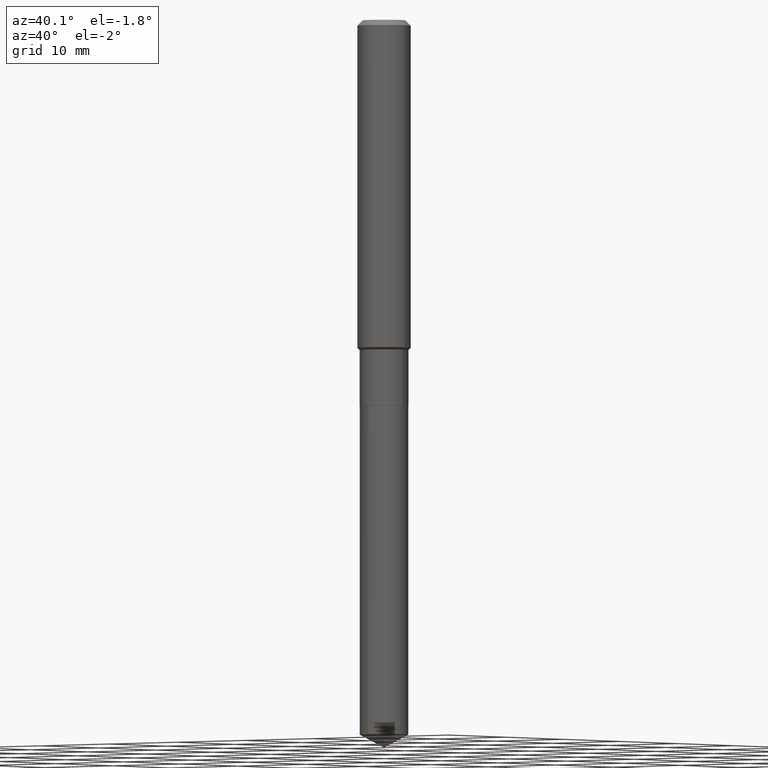
[diagram: clean part render]
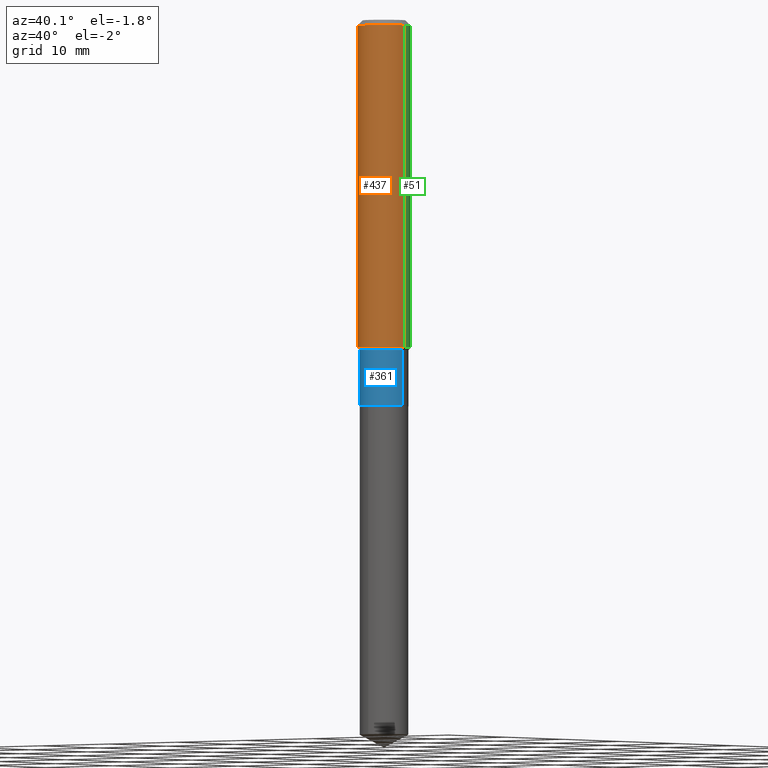
[diagram: same view with three faces highlighted in distinct colors, each labeled with its STEP entity id]
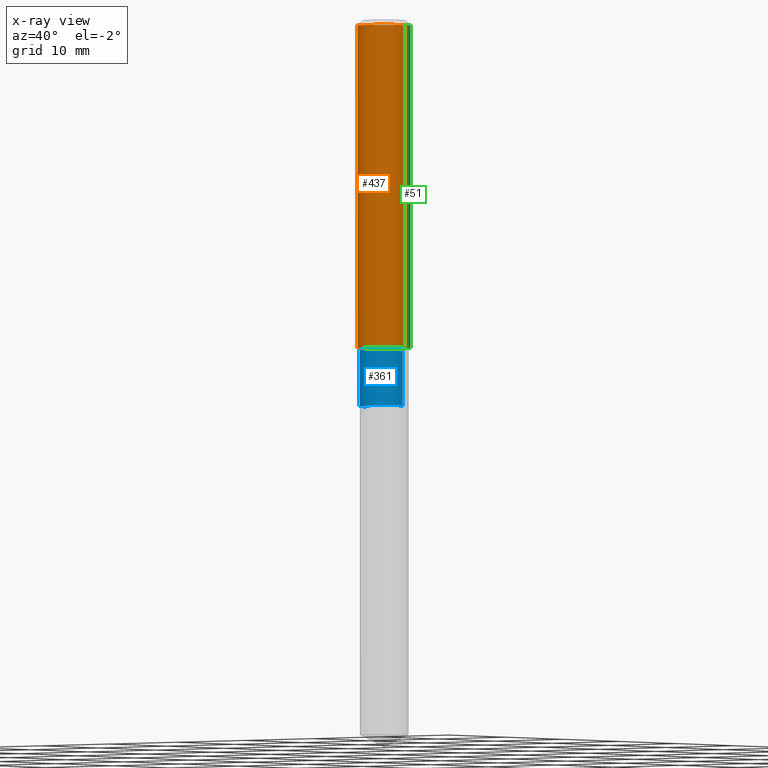
[diagram: x-ray of the same camera — body ghosted, the three highlighted faces saturated]
A machine part, auxiliary view with three faces highlighted in distinct colors.
The next image is the same camera in x-ray (body ghosted, the three faces saturated) — at least one of them is partly hidden behind the body in this view.
Their STEP definitions:

[orange] entity #437 — the highlighted cylindrical surface (edge-blend (fillet) strip) has radius 2.9997 mm, axis along (-0, 0, 1).
#4 = AXIS2_PLACEMENT_3D ( 'NONE', #48, #129, #350 ) ;
#8 = LINE ( 'NONE', #85, #433 ) ;
#16 = DIRECTION ( 'NONE',  ( -2.445468806185136597E-29, 3.491481338843145583E-15, 1.000000000000000000 ) ) ;
#18 = FACE_OUTER_BOUND ( 'NONE', #283, .T. ) ;
#28 = CARTESIAN_POINT ( 'NONE',  ( 0.1181000000000000799, -8.246878922347486570E-16, 5.758764772215004644E-30 ) ) ;
#48 = CARTESIAN_POINT ( 'NONE',  ( 3.554855730111023835E-29, -5.075391848209338091E-15, -1.453649999999999887 ) ) ;
#49 = ORIENTED_EDGE ( 'NONE', *, *, #268, .F. ) ;
#85 = CARTESIAN_POINT ( 'NONE',  ( -0.1181000000000000799, 8.391509709326788873E-16, -5.809262341591047988E-30 ) ) ;
#92 = VECTOR ( 'NONE', #484, 39.37007874015748143 ) ;
#126 = AXIS2_PLACEMENT_3D ( 'NONE', #411, #139, #447 ) ;
#129 = DIRECTION ( 'NONE',  ( -2.445468806185136597E-29, 3.491481338843145583E-15, 1.000000000000000000 ) ) ;
#139 = DIRECTION ( 'NONE',  ( -2.445468806185136597E-29, 3.491481338843145583E-15, 1.000000000000000000 ) ) ;
#154 = EDGE_CURVE ( 'NONE', #193, #281, #369, .T. ) ;
#161 = DIRECTION ( 'NONE',  ( 1.000000000000000000, -6.982962677686266711E-15, 0.000000000000000000 ) ) ;
#172 = CYLINDRICAL_SURFACE ( 'NONE', #126, 0.1181000000000000799 ) ;
#193 = VERTEX_POINT ( 'NONE', #355 ) ;
#200 = CARTESIAN_POINT ( 'NONE',  ( 5.776197320209327532E-31, -8.246878922347559293E-17, -0.02362000000000014088 ) ) ;
#221 = EDGE_CURVE ( 'NONE', #233, #434, #8, .T. ) ;
#232 = CARTESIAN_POINT ( 'NONE',  ( -0.1181000000000001632, -4.236240877276659105E-15, -1.453649999999999887 ) ) ;
#233 = VERTEX_POINT ( 'NONE', #232 ) ;
#236 = CIRCLE ( 'NONE', #259, 0.1180999999999999966 ) ;
#259 = AXIS2_PLACEMENT_3D ( 'NONE', #200, #16, #161 ) ;
#268 = EDGE_CURVE ( 'NONE', #434, #281, #236, .T. ) ;
#281 = VERTEX_POINT ( 'NONE', #425 ) ;
#283 = EDGE_LOOP ( 'NONE', ( #429, #390, #467, #49 ) ) ;
#292 = CARTESIAN_POINT ( 'NONE',  ( -0.1180999999999999966, -1.739779347783727196E-15, -0.02362000000000014088 ) ) ;
#303 = EDGE_CURVE ( 'NONE', #233, #193, #482, .T. ) ;
#312 = DIRECTION ( 'NONE',  ( -2.445468806185136877E-29, 3.491481338843145188E-15, 1.000000000000000000 ) ) ;
#350 = DIRECTION ( 'NONE',  ( 1.000000000000000000, -6.982962677686270655E-15, 0.000000000000000000 ) ) ;
#355 = CARTESIAN_POINT ( 'NONE',  ( 0.1181000000000001632, -5.900079740444087931E-15, -1.453649999999999887 ) ) ;
#369 = LINE ( 'NONE', #28, #92 ) ;
#390 = ORIENTED_EDGE ( 'NONE', *, *, #303, .T. ) ;
#411 = CARTESIAN_POINT ( 'NONE',  ( 0.000000000000000000, 0.000000000000000000, 0.000000000000000000 ) ) ;
#425 = CARTESIAN_POINT ( 'NONE',  ( 0.1180999999999999966, -9.071566814582237199E-16, -0.02362000000000014088 ) ) ;
#429 = ORIENTED_EDGE ( 'NONE', *, *, #221, .F. ) ;
#433 = VECTOR ( 'NONE', #312, 39.37007874015748143 ) ;
#434 = VERTEX_POINT ( 'NONE', #292 ) ;
#437 = ADVANCED_FACE ( 'NONE', ( #18 ), #172, .T. ) ;
#447 = DIRECTION ( 'NONE',  ( 1.000000000000000000, -6.982962677686266711E-15, 4.876176775795936353E-29 ) ) ;
#467 = ORIENTED_EDGE ( 'NONE', *, *, #154, .T. ) ;
#482 = CIRCLE ( 'NONE', #4, 0.1181000000000001632 ) ;
#484 = DIRECTION ( 'NONE',  ( -2.445468806185136877E-29, 3.491481338843145188E-15, 1.000000000000000000 ) ) ;

[blue] entity #361 — the highlighted cylindrical surface (edge-blend (fillet) strip) has radius 2.7495 mm, axis along (-0, 0, 1).
#1 = CARTESIAN_POINT ( 'NONE',  ( 3.578943597851947764E-29, -5.109782939396944472E-15, -1.463500000000000023 ) ) ;
#20 = CIRCLE ( 'NONE', #474, 0.1082499999999999712 ) ;
#22 = DIRECTION ( 'NONE',  ( -2.445468806185136597E-29, 3.491481338843145583E-15, 1.000000000000000000 ) ) ;
#26 = CARTESIAN_POINT ( 'NONE',  ( -0.1082499999999999851, 7.691625114603083455E-16, -5.324747235200934608E-30 ) ) ;
#27 = CYLINDRICAL_SURFACE ( 'NONE', #297, 0.1082499999999999851 ) ;
#44 = ORIENTED_EDGE ( 'NONE', *, *, #114, .F. ) ;
#45 = EDGE_CURVE ( 'NONE', #235, #201, #421, .T. ) ;
#64 = CARTESIAN_POINT ( 'NONE',  ( 0.1082499999999999851, -7.559057098595382610E-16, 5.278461359799099291E-30 ) ) ;
#67 = EDGE_CURVE ( 'NONE', #227, #201, #20, .T. ) ;
#99 = CARTESIAN_POINT ( 'NONE',  ( 4.186642596188954069E-29, -5.977416052099465667E-15, -1.712000000000000188 ) ) ;
#106 = DIRECTION ( 'NONE',  ( -2.445468806185136597E-29, 3.491481338843145583E-15, 1.000000000000000000 ) ) ;
#110 = DIRECTION ( 'NONE',  ( -2.445468806185136877E-29, 3.491481338843145188E-15, 1.000000000000000000 ) ) ;
#113 = CARTESIAN_POINT ( 'NONE',  ( -0.1082499999999999990, -4.774436984287896921E-15, -1.712000000000000188 ) ) ;
#114 = EDGE_CURVE ( 'NONE', #127, #227, #222, .T. ) ;
#127 = VERTEX_POINT ( 'NONE', #113 ) ;
#133 = FACE_OUTER_BOUND ( 'NONE', #460, .T. ) ;
#157 = CARTESIAN_POINT ( 'NONE',  ( -0.1082499999999999712, -4.774436984287896921E-15, -1.463500000000000023 ) ) ;
#194 = VECTOR ( 'NONE', #252, 39.37007874015748143 ) ;
#201 = VERTEX_POINT ( 'NONE', #346 ) ;
#214 = CIRCLE ( 'NONE', #289, 0.1082499999999999990 ) ;
#222 = LINE ( 'NONE', #26, #194 ) ;
#227 = VERTEX_POINT ( 'NONE', #157 ) ;
#235 = VERTEX_POINT ( 'NONE', #266 ) ;
#252 = DIRECTION ( 'NONE',  ( -2.445468806185136877E-29, 3.491481338843145188E-15, 1.000000000000000000 ) ) ;
#266 = CARTESIAN_POINT ( 'NONE',  ( 0.1082499999999999990, -6.733321761959004322E-15, -1.712000000000000188 ) ) ;
#288 = DIRECTION ( 'NONE',  ( 1.000000000000000000, -6.982962677686266711E-15, 4.876176775795935232E-29 ) ) ;
#289 = AXIS2_PLACEMENT_3D ( 'NONE', #99, #22, #333 ) ;
#297 = AXIS2_PLACEMENT_3D ( 'NONE', #398, #106, #288 ) ;
#333 = DIRECTION ( 'NONE',  ( 1.000000000000000000, -6.982962677686267499E-15, 0.000000000000000000 ) ) ;
#342 = DIRECTION ( 'NONE',  ( 1.000000000000000000, -6.982962677686269077E-15, 0.000000000000000000 ) ) ;
#346 = CARTESIAN_POINT ( 'NONE',  ( 0.1082499999999999712, -5.865688649256482338E-15, -1.463500000000000023 ) ) ;
#361 = ADVANCED_FACE ( 'NONE', ( #133 ), #27, .T. ) ;
#363 = ORIENTED_EDGE ( 'NONE', *, *, #67, .F. ) ;
#366 = ORIENTED_EDGE ( 'NONE', *, *, #465, .T. ) ;
#398 = CARTESIAN_POINT ( 'NONE',  ( 0.000000000000000000, 0.000000000000000000, 0.000000000000000000 ) ) ;
#418 = DIRECTION ( 'NONE',  ( -2.445468806185136597E-29, 3.491481338843145583E-15, 1.000000000000000000 ) ) ;
#421 = LINE ( 'NONE', #64, #443 ) ;
#427 = ORIENTED_EDGE ( 'NONE', *, *, #45, .T. ) ;
#443 = VECTOR ( 'NONE', #110, 39.37007874015748143 ) ;
#460 = EDGE_LOOP ( 'NONE', ( #44, #366, #427, #363 ) ) ;
#465 = EDGE_CURVE ( 'NONE', #127, #235, #214, .T. ) ;
#474 = AXIS2_PLACEMENT_3D ( 'NONE', #1, #418, #342 ) ;

[green] entity #51 — the highlighted cylindrical surface (edge-blend (fillet) strip) has radius 2.9997 mm, axis along (-0, 0, 1).
#8 = LINE ( 'NONE', #85, #433 ) ;
#10 = DIRECTION ( 'NONE',  ( -2.445468806185136597E-29, 3.491481338843145583E-15, 1.000000000000000000 ) ) ;
#21 = ORIENTED_EDGE ( 'NONE', *, *, #154, .F. ) ;
#28 = CARTESIAN_POINT ( 'NONE',  ( 0.1181000000000000799, -8.246878922347486570E-16, 5.758764772215004644E-30 ) ) ;
#40 = DIRECTION ( 'NONE',  ( 1.000000000000000000, -6.982962677686266711E-15, 4.876176775795936353E-29 ) ) ;
#51 = ADVANCED_FACE ( 'NONE', ( #217 ), #104, .T. ) ;
#54 = ORIENTED_EDGE ( 'NONE', *, *, #335, .T. ) ;
#61 = ORIENTED_EDGE ( 'NONE', *, *, #202, .F. ) ;
#85 = CARTESIAN_POINT ( 'NONE',  ( -0.1181000000000000799, 8.391509709326788873E-16, -5.809262341591047988E-30 ) ) ;
#92 = VECTOR ( 'NONE', #484, 39.37007874015748143 ) ;
#104 = CYLINDRICAL_SURFACE ( 'NONE', #228, 0.1181000000000000799 ) ;
#154 = EDGE_CURVE ( 'NONE', #193, #281, #369, .T. ) ;
#180 = DIRECTION ( 'NONE',  ( -2.445468806185136597E-29, 3.491481338843145583E-15, 1.000000000000000000 ) ) ;
#192 = CARTESIAN_POINT ( 'NONE',  ( 5.776197320209327532E-31, -8.246878922347559293E-17, -0.02362000000000014088 ) ) ;
#193 = VERTEX_POINT ( 'NONE', #355 ) ;
#195 = DIRECTION ( 'NONE',  ( 1.000000000000000000, -6.982962677686266711E-15, 0.000000000000000000 ) ) ;
#199 = AXIS2_PLACEMENT_3D ( 'NONE', #192, #10, #195 ) ;
#202 = EDGE_CURVE ( 'NONE', #281, #434, #254, .T. ) ;
#217 = FACE_OUTER_BOUND ( 'NONE', #240, .T. ) ;
#221 = EDGE_CURVE ( 'NONE', #233, #434, #8, .T. ) ;
#228 = AXIS2_PLACEMENT_3D ( 'NONE', #380, #180, #40 ) ;
#232 = CARTESIAN_POINT ( 'NONE',  ( -0.1181000000000001632, -4.236240877276659105E-15, -1.453649999999999887 ) ) ;
#233 = VERTEX_POINT ( 'NONE', #232 ) ;
#240 = EDGE_LOOP ( 'NONE', ( #54, #356, #61, #21 ) ) ;
#254 = CIRCLE ( 'NONE', #199, 0.1180999999999999966 ) ;
#271 = CARTESIAN_POINT ( 'NONE',  ( 3.554855730111023835E-29, -5.075391848209338091E-15, -1.453649999999999887 ) ) ;
#275 = DIRECTION ( 'NONE',  ( -2.445468806185136597E-29, 3.491481338843145583E-15, 1.000000000000000000 ) ) ;
#281 = VERTEX_POINT ( 'NONE', #425 ) ;
#292 = CARTESIAN_POINT ( 'NONE',  ( -0.1180999999999999966, -1.739779347783727196E-15, -0.02362000000000014088 ) ) ;
#312 = DIRECTION ( 'NONE',  ( -2.445468806185136877E-29, 3.491481338843145188E-15, 1.000000000000000000 ) ) ;
#323 = AXIS2_PLACEMENT_3D ( 'NONE', #271, #275, #430 ) ;
#332 = CIRCLE ( 'NONE', #323, 0.1181000000000001632 ) ;
#335 = EDGE_CURVE ( 'NONE', #193, #233, #332, .T. ) ;
#355 = CARTESIAN_POINT ( 'NONE',  ( 0.1181000000000001632, -5.900079740444087931E-15, -1.453649999999999887 ) ) ;
#356 = ORIENTED_EDGE ( 'NONE', *, *, #221, .T. ) ;
#369 = LINE ( 'NONE', #28, #92 ) ;
#380 = CARTESIAN_POINT ( 'NONE',  ( 0.000000000000000000, 0.000000000000000000, 0.000000000000000000 ) ) ;
#425 = CARTESIAN_POINT ( 'NONE',  ( 0.1180999999999999966, -9.071566814582237199E-16, -0.02362000000000014088 ) ) ;
#430 = DIRECTION ( 'NONE',  ( 1.000000000000000000, -6.982962677686270655E-15, 0.000000000000000000 ) ) ;
#433 = VECTOR ( 'NONE', #312, 39.37007874015748143 ) ;
#434 = VERTEX_POINT ( 'NONE', #292 ) ;
#484 = DIRECTION ( 'NONE',  ( -2.445468806185136877E-29, 3.491481338843145188E-15, 1.000000000000000000 ) ) ;